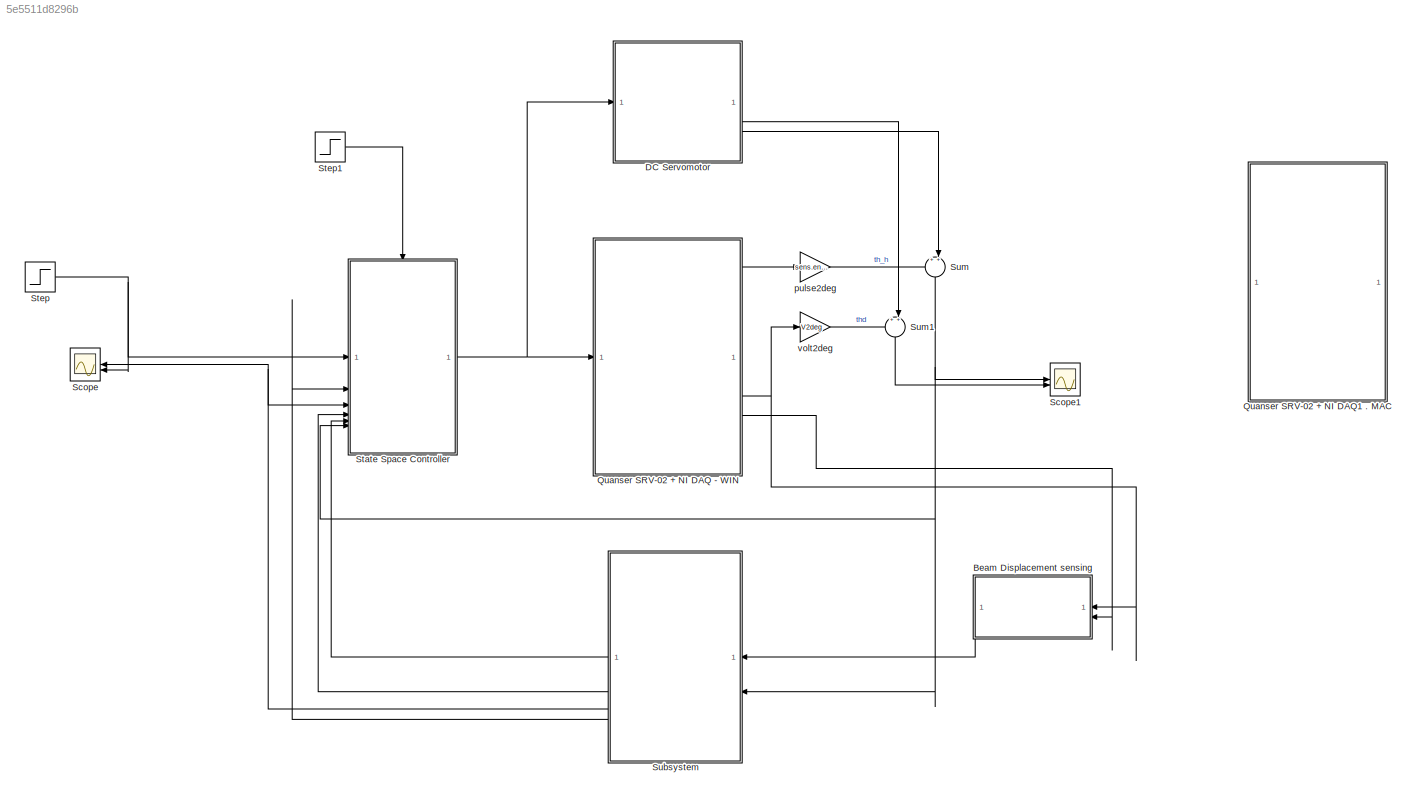
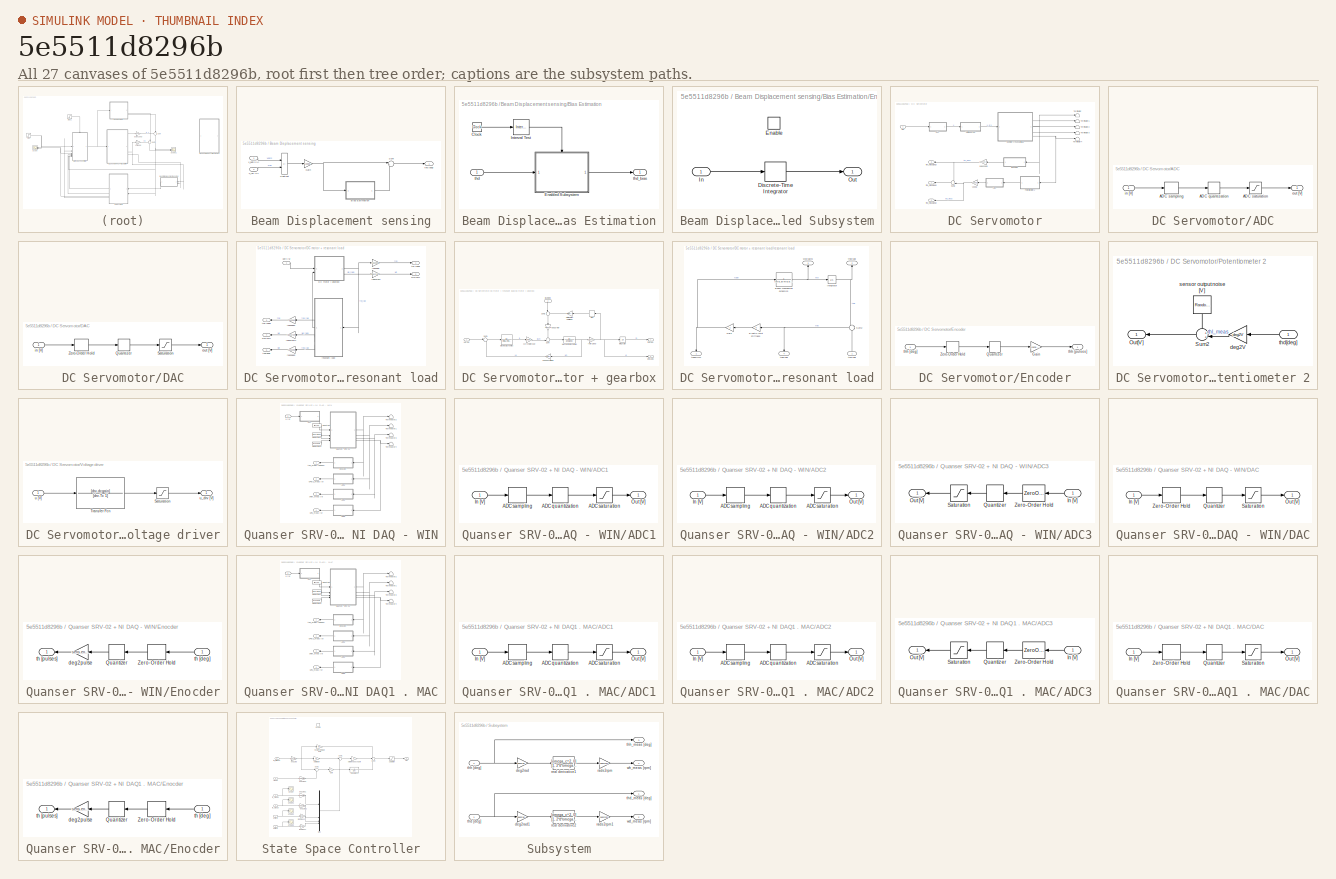
[diagram: thumbnail index - all 27 canvases of the model, root first then tree order]
MODEL slx_5e5511d8296b
KIND model
CONFIG AbsTol = auto
CONFIG EnableMultiTasking = off
CONFIG FixedStep = auto
CONFIG MaxStep = auto
CONFIG MinStep = auto
CONFIG RelTol = 1e-3
CONFIG SampleTimeConstraint = Unconstrained
CONFIG SolverName = ode45
CONFIG StartTime = 0.0
CONFIG StopTime = 5
BLOCK [SubSystem] Beam Displacement sensing
  NameLocation = top
BLOCK [SubSystem] Beam Displacement sensing/Bias Estimation
BLOCK [Clock] Beam Displacement sensing/Bias Estimation/Clock
BLOCK [SubSystem] Beam Displacement sensing/Bias Estimation/Enabled Subsystem
  TreatAsAtomicUnit = on
BLOCK [DiscreteIntegrator] Beam Displacement sensing/Bias Estimation/Enabled Subsystem/Discrete-Time Integrator
  ICPrevOutput = DiscIntNeverNeededParam
  ICPrevScaledInput = DiscIntNeverNeededParam
  InitialConditionSetting = Auto
  SampleTime = -1
  gainval = 1/0.5
BLOCK [EnablePort] Beam Displacement sensing/Bias Estimation/Enabled Subsystem/Enable
BLOCK [Inport] Beam Displacement sensing/Bias Estimation/Enabled Subsystem/In
BLOCK [Outport] Beam Displacement sensing/Bias Estimation/Enabled Subsystem/Out
BLOCK [Reference] Beam Displacement sensing/Bias Estimation/Interval Test  REF=hdlsllib/Logic and Bit
Operations/Interval Test
  SourceBlock = hdlsllib/Logic and Bit\nOperations/Interval Test
  SourceType = Interval Test
BLOCK [Inport] Beam Displacement sensing/Bias Estimation/thd
BLOCK [Outport] Beam Displacement sensing/Bias Estimation/thd_bias
BLOCK [Gain] Beam Displacement sensing/Gain
  Gain = V2deg
BLOCK [Sum] Beam Displacement sensing/Subtract
  IconShape = rectangular
  Inputs = +-
BLOCK [Sum] Beam Displacement sensing/Sum
  Inputs = |+-
BLOCK [Outport] Beam Displacement sensing/thd [deg]
BLOCK [Inport] Beam Displacement sensing/v_pot2 [V]
BLOCK [Inport] Beam Displacement sensing/v_ref [V]
  Port = 2
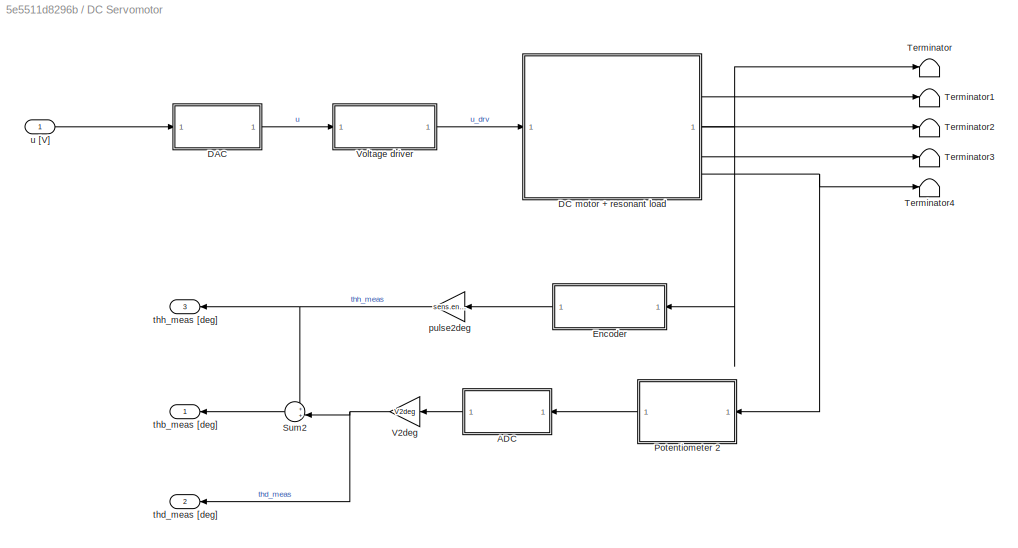
BLOCK [SubSystem] DC Servomotor
  Commented = on
BLOCK [SubSystem] DC Servomotor/ADC
  NameLocation = top
BLOCK [Quantizer] DC Servomotor/ADC/ADC quantization
  QuantizationInterval = daq.adc.q
BLOCK [ZeroOrderHold] DC Servomotor/ADC/ADC sampling
  SampleTime = 0.001
BLOCK [Saturate] DC Servomotor/ADC/ADC saturation
  LowerLimit = -10
  UpperLimit = 10
BLOCK [Inport] DC Servomotor/ADC/in [V]
BLOCK [Outport] DC Servomotor/ADC/out [V]
BLOCK [SubSystem] DC Servomotor/DAC
BLOCK [Quantizer] DC Servomotor/DAC/Quantizer
  QuantizationInterval = daq.dac.q
BLOCK [Saturate] DC Servomotor/DAC/Saturation
  LowerLimit = -10
  UpperLimit = 10
BLOCK [ZeroOrderHold] DC Servomotor/DAC/Zero-Order Hold
  SampleTime = 0.001
BLOCK [Inport] DC Servomotor/DAC/in [V]
BLOCK [Outport] DC Servomotor/DAC/out [V]
BLOCK [SubSystem] DC Servomotor/DC motor + resonant load
BLOCK [SubSystem] DC Servomotor/DC motor + resonant load/DC motor + gearbox
BLOCK [TransferFcn] DC Servomotor/DC motor + resonant load/DC motor + gearbox/Electrical Dynamics
  Denominator = [mot.L, (mot.R+sens.curr.Rs)]
BLOCK [Integrator] DC Servomotor/DC motor + resonant load/DC motor + gearbox/Integrator
BLOCK [TransferFcn] DC Servomotor/DC motor + resonant load/DC motor + gearbox/Mechanical Dynamics
  Denominator = [Jeq, Beq]
BLOCK [Signum] DC Servomotor/DC motor + resonant load/DC motor + gearbox/Sign
  ZeroCross = off
BLOCK [Sum] DC Servomotor/DC motor + resonant load/DC motor + gearbox/Sum
  Inputs = -+|
  NameLocation = top
BLOCK [Sum] DC Servomotor/DC motor + resonant load/DC motor + gearbox/Sum1
  Inputs = |+-
  NameLocation = top
BLOCK [Sum] DC Servomotor/DC motor + resonant load/DC motor + gearbox/Sum2
  Inputs = |++
  NameLocation = right
BLOCK [Gain] DC Servomotor/DC motor + resonant load/DC motor + gearbox/current2torque
  Gain = mot.Kt
BLOCK [Gain] DC Servomotor/DC motor + resonant load/DC motor + gearbox/load2rotor
  Gain = 1/gbox.N
  NameLocation = left
BLOCK [Gain] DC Servomotor/DC motor + resonant load/DC motor + gearbox/rotor2load
  Gain = 1/gbox.N
BLOCK [Gain] DC Servomotor/DC motor + resonant load/DC motor + gearbox/speed2voltage
  Gain = mot.Ke
BLOCK [Gain] DC Servomotor/DC motor + resonant load/DC motor + gearbox/static friction amplitude
  Gain = mld.tausf
BLOCK [Inport] DC Servomotor/DC motor + resonant load/DC motor + gearbox/taue[Nm]
  NameLocation = left
  Port = 2
BLOCK [Outport] DC Servomotor/DC motor + resonant load/DC motor + gearbox/thh [rad]
BLOCK [Inport] DC Servomotor/DC motor + resonant load/DC motor + gearbox/udrv [V]
BLOCK [Outport] DC Servomotor/DC motor + resonant load/DC motor + gearbox/wh[rad//s]
  Port = 2
BLOCK [Gain] DC Servomotor/DC motor + resonant load/rad2deg
  Gain = rad2deg
BLOCK [Gain] DC Servomotor/DC motor + resonant load/rad2deg1
  Gain = rad2deg
  NameLocation = top
BLOCK [Gain] DC Servomotor/DC motor + resonant load/rad2deg2
  Gain = rad2deg
  NameLocation = top
BLOCK [Gain] DC Servomotor/DC motor + resonant load/rads2rpm
  Gain = rads2rpm
BLOCK [Gain] DC Servomotor/DC motor + resonant load/rads2rpm1
  Gain = rads2rpm
  NameLocation = top
BLOCK [SubSystem] DC Servomotor/DC motor + resonant load/resonant load
  NameLocation = top
BLOCK [TransferFcn] DC Servomotor/DC motor + resonant load/resonant load/Beam mechanical dynamics
  Denominator = [mld.Jb mld.Bb]
  Numerator = 1
BLOCK [Gain] DC Servomotor/DC motor + resonant load/resonant load/Elastic joint stiffness
  Gain = 0
  NameLocation = top
BLOCK [Gain] DC Servomotor/DC motor + resonant load/resonant load/Gain
  Gain = -1
  NameLocation = top
BLOCK [Integrator] DC Servomotor/DC motor + resonant load/resonant load/Integrator
BLOCK [Sum] DC Servomotor/DC motor + resonant load/resonant load/Sum2
  Inputs = +-
BLOCK [Outport] DC Servomotor/DC motor + resonant load/resonant load/taue[Nm]
  NameLocation = left
BLOCK [Outport] DC Servomotor/DC motor + resonant load/resonant load/thb[rad]
  NameLocation = right
  Port = 2
BLOCK [Outport] DC Servomotor/DC motor + resonant load/resonant load/thd[rad]
  NameLocation = left
  Port = 4
BLOCK [Inport] DC Servomotor/DC motor + resonant load/resonant load/thh[rad]
  NameLocation = right
BLOCK [Outport] DC Servomotor/DC motor + resonant load/resonant load/wb[rad//s]
  NameLocation = right
  Port = 3
BLOCK [Outport] DC Servomotor/DC motor + resonant load/thb [deg]
  NameLocation = top
  Port = 3
BLOCK [Outport] DC Servomotor/DC motor + resonant load/thd[deg]
  NameLocation = top
  Port = 5
BLOCK [Outport] DC Servomotor/DC motor + resonant load/thh [deg]
BLOCK [Inport] DC Servomotor/DC motor + resonant load/udrv [V]
BLOCK [Outport] DC Servomotor/DC motor + resonant load/wb[rpm]
  NameLocation = top
  Port = 4
BLOCK [Outport] DC Servomotor/DC motor + resonant load/wh[rpm]
  Port = 2
BLOCK [SubSystem] DC Servomotor/Encoder
BLOCK [Gain] DC Servomotor/Encoder/Gain
  Gain = 1/sens.enc.pulse2deg
BLOCK [Quantizer] DC Servomotor/Encoder/Quantizer
  QuantizationInterval = sens.enc.pulse2deg
BLOCK [ZeroOrderHold] DC Servomotor/Encoder/Zero-Order Hold
  SampleTime = 0.001
BLOCK [Inport] DC Servomotor/Encoder/thh [deg]
BLOCK [Outport] DC Servomotor/Encoder/thh [pulses]
BLOCK [SubSystem] DC Servomotor/Potentiometer 2
  NameLocation = top
BLOCK [Outport] DC Servomotor/Potentiometer 2/Out[V]
  NameLocation = top
BLOCK [Sum] DC Servomotor/Potentiometer 2/Sum2
  Inputs = ++|
BLOCK [Gain] DC Servomotor/Potentiometer 2/deg2V
  Gain = deg2V
BLOCK [RandomNumber] DC Servomotor/Potentiometer 2/sensor output noise [V]
  NameLocation = left
  SampleTime = 0.001
  Variance = 3.5*10^[-7]
BLOCK [Inport] DC Servomotor/Potentiometer 2/thd[deg]
  NameLocation = top
BLOCK [Sum] DC Servomotor/Sum2
  Inputs = ++|
BLOCK [Terminator] DC Servomotor/Terminator
BLOCK [Terminator] DC Servomotor/Terminator1
BLOCK [Terminator] DC Servomotor/Terminator2
BLOCK [Terminator] DC Servomotor/Terminator3
BLOCK [Terminator] DC Servomotor/Terminator4
BLOCK [Gain] DC Servomotor/V2deg
  Gain = V2deg
BLOCK [SubSystem] DC Servomotor/Voltage driver
BLOCK [Saturate] DC Servomotor/Voltage driver/Saturation
  LowerLimit = -12
  UpperLimit = 12
BLOCK [TransferFcn] DC Servomotor/Voltage driver/Transfer Fcn
  Denominator = [drv.Tc 1]
  Numerator = [drv.dcgain]
BLOCK [Inport] DC Servomotor/Voltage driver/u [V]
BLOCK [Outport] DC Servomotor/Voltage driver/u_drv [V]
BLOCK [Gain] DC Servomotor/pulse2deg
  Gain = sens.enc.pulse2deg
BLOCK [Outport] DC Servomotor/thb_meas [deg]
  NameLocation = top
BLOCK [Outport] DC Servomotor/thd_meas [deg]
  NameLocation = top
  Port = 2
BLOCK [Outport] DC Servomotor/thh_meas [deg]
  NameLocation = top
  Port = 3
BLOCK [Inport] DC Servomotor/u [V]
BLOCK [SubSystem] Quanser SRV-02 + NI DAQ - WIN
BLOCK [SubSystem] Quanser SRV-02 + NI DAQ - WIN/ADC1
BLOCK [Quantizer] Quanser SRV-02 + NI DAQ - WIN/ADC1/ADC quantization
  QuantizationInterval = daq.adc.q
BLOCK [ZeroOrderHold] Quanser SRV-02 + NI DAQ - WIN/ADC1/ADC sampling
  SampleTime = Ts
BLOCK [Saturate] Quanser SRV-02 + NI DAQ - WIN/ADC1/ADC saturation
  LowerLimit = -daq.adc.fs
  UpperLimit = daq.adc.fs
BLOCK [Inport] Quanser SRV-02 + NI DAQ - WIN/ADC1/In [V]
BLOCK [Outport] Quanser SRV-02 + NI DAQ - WIN/ADC1/Out [V]
BLOCK [SubSystem] Quanser SRV-02 + NI DAQ - WIN/ADC2
BLOCK [Quantizer] Quanser SRV-02 + NI DAQ - WIN/ADC2/ADC quantization
  QuantizationInterval = daq.adc.q
BLOCK [ZeroOrderHold] Quanser SRV-02 + NI DAQ - WIN/ADC2/ADC sampling
  SampleTime = Ts
BLOCK [Saturate] Quanser SRV-02 + NI DAQ - WIN/ADC2/ADC saturation
  LowerLimit = -daq.adc.fs
  UpperLimit = daq.adc.fs
BLOCK [Inport] Quanser SRV-02 + NI DAQ - WIN/ADC2/In [V]
BLOCK [Outport] Quanser SRV-02 + NI DAQ - WIN/ADC2/Out [V]
BLOCK [SubSystem] Quanser SRV-02 + NI DAQ - WIN/ADC3
BLOCK [Inport] Quanser SRV-02 + NI DAQ - WIN/ADC3/In [V]
BLOCK [Outport] Quanser SRV-02 + NI DAQ - WIN/ADC3/Out [V]
BLOCK [Quantizer] Quanser SRV-02 + NI DAQ - WIN/ADC3/Quantizer
  QuantizationInterval = daq.adc.q
BLOCK [Saturate] Quanser SRV-02 + NI DAQ - WIN/ADC3/Saturation
  LowerLimit = -daq.adc.fs
  UpperLimit = daq.adc.fs
BLOCK [ZeroOrderHold] Quanser SRV-02 + NI DAQ - WIN/ADC3/Zero-Order Hold
  SampleTime = Ts
BLOCK [Constant] Quanser SRV-02 + NI DAQ - WIN/Constant
  Value = fricType
BLOCK [Constant] Quanser SRV-02 + NI DAQ - WIN/Constant1
  SampleTime = Inf
  Value = thb0*pi/180
BLOCK [Constant] Quanser SRV-02 + NI DAQ - WIN/Constant2
  SampleTime = Inf
  Value = lockShaft
BLOCK [SubSystem] Quanser SRV-02 + NI DAQ - WIN/DAC
BLOCK [Inport] Quanser SRV-02 + NI DAQ - WIN/DAC/In [V]
BLOCK [Outport] Quanser SRV-02 + NI DAQ - WIN/DAC/Out [V]
BLOCK [Quantizer] Quanser SRV-02 + NI DAQ - WIN/DAC/Quantizer
  QuantizationInterval = daq.dac.q
BLOCK [Saturate] Quanser SRV-02 + NI DAQ - WIN/DAC/Saturation
  LowerLimit = -daq.dac.fs
  UpperLimit = daq.dac.fs
BLOCK [ZeroOrderHold] Quanser SRV-02 + NI DAQ - WIN/DAC/Zero-Order Hold
  SampleTime = Ts
BLOCK [SubSystem] Quanser SRV-02 + NI DAQ - WIN/Enocder
BLOCK [Quantizer] Quanser SRV-02 + NI DAQ - WIN/Enocder/Quantizer
  QuantizationInterval = sens.enc.pulse2deg
BLOCK [ZeroOrderHold] Quanser SRV-02 + NI DAQ - WIN/Enocder/Zero-Order Hold
  SampleTime = Ts
BLOCK [Gain] Quanser SRV-02 + NI DAQ - WIN/Enocder/deg2pulse
  Gain = sens.enc.deg2pulse
BLOCK [Inport] Quanser SRV-02 + NI DAQ - WIN/Enocder/th [deg]
BLOCK [Outport] Quanser SRV-02 + NI DAQ - WIN/Enocder/th [pulses]
BLOCK [ModelReference] Quanser SRV-02 + NI DAQ - WIN/Quanser SRV-02
  CopyOfModelProtected = on
  ModelNameDialog = SRV02RL_win64.slxp
  ModelReferenceVersion = 1.76
BLOCK [Terminator] Quanser SRV-02 + NI DAQ - WIN/Terminator1
BLOCK [Terminator] Quanser SRV-02 + NI DAQ - WIN/Terminator2
BLOCK [Terminator] Quanser SRV-02 + NI DAQ - WIN/Terminator3
BLOCK [Terminator] Quanser SRV-02 + NI DAQ - WIN/Terminator4
BLOCK [Outport] Quanser SRV-02 + NI DAQ - WIN/thh_meas [pulses]
BLOCK [Inport] Quanser SRV-02 + NI DAQ - WIN/u [V]
BLOCK [Outport] Quanser SRV-02 + NI DAQ - WIN/uPot2_meas [V]
  Port = 2
BLOCK [Outport] Quanser SRV-02 + NI DAQ - WIN/uRef_meas [V]
  Port = 3
BLOCK [Outport] Quanser SRV-02 + NI DAQ - WIN/uRs_meas [V]
  Port = 4
BLOCK [SubSystem] Quanser SRV-02 + NI DAQ1 . MAC
  Commented = on
BLOCK [SubSystem] Quanser SRV-02 + NI DAQ1 . MAC/ADC1
BLOCK [Quantizer] Quanser SRV-02 + NI DAQ1 . MAC/ADC1/ADC quantization
  QuantizationInterval = daq.adc.q
BLOCK [ZeroOrderHold] Quanser SRV-02 + NI DAQ1 . MAC/ADC1/ADC sampling
  SampleTime = Ts
BLOCK [Saturate] Quanser SRV-02 + NI DAQ1 . MAC/ADC1/ADC saturation
  LowerLimit = -daq.adc.fs
  UpperLimit = daq.adc.fs
BLOCK [Inport] Quanser SRV-02 + NI DAQ1 . MAC/ADC1/In [V]
BLOCK [Outport] Quanser SRV-02 + NI DAQ1 . MAC/ADC1/Out [V]
BLOCK [SubSystem] Quanser SRV-02 + NI DAQ1 . MAC/ADC2
BLOCK [Quantizer] Quanser SRV-02 + NI DAQ1 . MAC/ADC2/ADC quantization
  QuantizationInterval = daq.adc.q
BLOCK [ZeroOrderHold] Quanser SRV-02 + NI DAQ1 . MAC/ADC2/ADC sampling
  SampleTime = Ts
BLOCK [Saturate] Quanser SRV-02 + NI DAQ1 . MAC/ADC2/ADC saturation
  LowerLimit = -daq.adc.fs
  UpperLimit = daq.adc.fs
BLOCK [Inport] Quanser SRV-02 + NI DAQ1 . MAC/ADC2/In [V]
BLOCK [Outport] Quanser SRV-02 + NI DAQ1 . MAC/ADC2/Out [V]
BLOCK [SubSystem] Quanser SRV-02 + NI DAQ1 . MAC/ADC3
BLOCK [Inport] Quanser SRV-02 + NI DAQ1 . MAC/ADC3/In [V]
BLOCK [Outport] Quanser SRV-02 + NI DAQ1 . MAC/ADC3/Out [V]
BLOCK [Quantizer] Quanser SRV-02 + NI DAQ1 . MAC/ADC3/Quantizer
  QuantizationInterval = daq.adc.q
BLOCK [Saturate] Quanser SRV-02 + NI DAQ1 . MAC/ADC3/Saturation
  LowerLimit = -daq.adc.fs
  UpperLimit = daq.adc.fs
BLOCK [ZeroOrderHold] Quanser SRV-02 + NI DAQ1 . MAC/ADC3/Zero-Order Hold
  SampleTime = Ts
BLOCK [Constant] Quanser SRV-02 + NI DAQ1 . MAC/Constant
  Value = fricType
BLOCK [Constant] Quanser SRV-02 + NI DAQ1 . MAC/Constant1
  SampleTime = Inf
  Value = thb0*pi/180
BLOCK [Constant] Quanser SRV-02 + NI DAQ1 . MAC/Constant2
  SampleTime = Inf
  Value = lockShaft
BLOCK [SubSystem] Quanser SRV-02 + NI DAQ1 . MAC/DAC
BLOCK [Inport] Quanser SRV-02 + NI DAQ1 . MAC/DAC/In [V]
BLOCK [Outport] Quanser SRV-02 + NI DAQ1 . MAC/DAC/Out [V]
BLOCK [Quantizer] Quanser SRV-02 + NI DAQ1 . MAC/DAC/Quantizer
  QuantizationInterval = daq.dac.q
BLOCK [Saturate] Quanser SRV-02 + NI DAQ1 . MAC/DAC/Saturation
  LowerLimit = -daq.dac.fs
  UpperLimit = daq.dac.fs
BLOCK [ZeroOrderHold] Quanser SRV-02 + NI DAQ1 . MAC/DAC/Zero-Order Hold
  SampleTime = Ts
BLOCK [SubSystem] Quanser SRV-02 + NI DAQ1 . MAC/Enocder
BLOCK [Quantizer] Quanser SRV-02 + NI DAQ1 . MAC/Enocder/Quantizer
  QuantizationInterval = sens.enc.pulse2deg
BLOCK [ZeroOrderHold] Quanser SRV-02 + NI DAQ1 . MAC/Enocder/Zero-Order Hold
  SampleTime = Ts
BLOCK [Gain] Quanser SRV-02 + NI DAQ1 . MAC/Enocder/deg2pulse
  Gain = sens.enc.deg2pulse
BLOCK [Inport] Quanser SRV-02 + NI DAQ1 . MAC/Enocder/th [deg]
BLOCK [Outport] Quanser SRV-02 + NI DAQ1 . MAC/Enocder/th [pulses]
BLOCK [ModelReference] Quanser SRV-02 + NI DAQ1 . MAC/Quanser SRV-02
  CopyOfModelProtected = on
  ModelNameDialog = SRV02RL_maci64.slxp
  ModelReferenceVersion = 1.76
BLOCK [Terminator] Quanser SRV-02 + NI DAQ1 . MAC/Terminator1
BLOCK [Terminator] Quanser SRV-02 + NI DAQ1 . MAC/Terminator2
BLOCK [Terminator] Quanser SRV-02 + NI DAQ1 . MAC/Terminator3
BLOCK [Terminator] Quanser SRV-02 + NI DAQ1 . MAC/Terminator4
BLOCK [Outport] Quanser SRV-02 + NI DAQ1 . MAC/thh_meas [pulses]
BLOCK [Inport] Quanser SRV-02 + NI DAQ1 . MAC/u [V]
BLOCK [Outport] Quanser SRV-02 + NI DAQ1 . MAC/uPot2_meas [V]
  Port = 2
BLOCK [Outport] Quanser SRV-02 + NI DAQ1 . MAC/uRef_meas [V]
  Port = 3
BLOCK [Outport] Quanser SRV-02 + NI DAQ1 . MAC/uRs_meas [V]
  Port = 4
BLOCK [Scope] Scope
  Floating = off
  NameLocation = top
  NumInputPorts = 2
  ScopeSpecificationString = Simulink.scopes.TimeScopeBlockCfg('CurrentConfiguration', extmgr.ConfigurationSet(extmgr.Configuration('Core','General UI',true),extmgr.Configuration('Core','Source UI',true),extmgr.Configuration('Sources','WiredSimulink',true),extmgr.Configuration('Visuals','Time Domain',true,'SerializedDisplays',{struct('MinYLimReal','-6.615','MaxYLimReal','59.535','YLabelReal','','MinYLimMag','0.00000','MaxYLim...<+1403ch>
BLOCK [Scope] Scope1
  Floating = off
  NumInputPorts = 2
  ScopeSpecificationString = Simulink.scopes.TimeScopeBlockCfg('CurrentConfiguration', extmgr.ConfigurationSet(extmgr.Configuration('Core','General UI',true),extmgr.Configuration('Core','Source UI',true),extmgr.Configuration('Sources','WiredSimulink',true,'DataLoggingVariableName','ScopeData1'),extmgr.Configuration('Visuals','Time Domain',true,'SerializedDisplays',{struct('MinYLimReal','-30.81093','MaxYLimReal','203.49838','Y...<+1406ch>
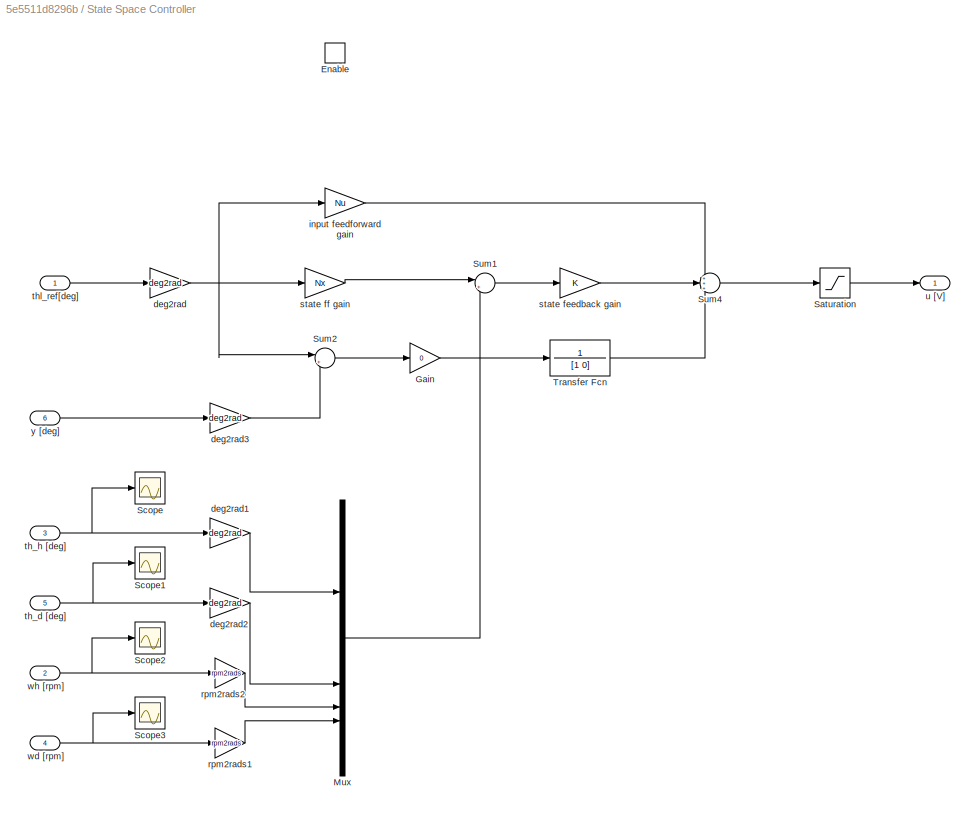
BLOCK [SubSystem] State Space Controller
BLOCK [Saturate] State Space Controller/ Saturation
  LowerLimit = -12
  UpperLimit = 12
BLOCK [EnablePort] State Space Controller/Enable
BLOCK [Gain] State Space Controller/Gain
  Gain = 0
BLOCK [Mux] State Space Controller/Mux
  DisplayOption = bar
BLOCK [Scope] State Space Controller/Scope
  Floating = off
  NumInputPorts = 1
  ScopeSpecificationString = Simulink.scopes.TimeScopeBlockCfg('CurrentConfiguration', extmgr.ConfigurationSet(extmgr.Configuration('Core','General UI',true),extmgr.Configuration('Core','Source UI',true),extmgr.Configuration('Sources','WiredSimulink',true,'DataLoggingVariableName','ScopeData1'),extmgr.Configuration('Visuals','Time Domain',true,'SerializedDisplays',{struct('MinYLimReal','-14.2875','MaxYLimReal','54.7875','YLab...<+1369ch>
BLOCK [Scope] State Space Controller/Scope1
  Floating = off
  NumInputPorts = 1
  ScopeSpecificationString = Simulink.scopes.TimeScopeBlockCfg('CurrentConfiguration', extmgr.ConfigurationSet(extmgr.Configuration('Core','General UI',true),extmgr.Configuration('Core','Source UI',true),extmgr.Configuration('Sources','WiredSimulink',true,'DataLoggingVariableName','ScopeData2'),extmgr.Configuration('Visuals','Time Domain',true,'SerializedDisplays',{struct('MinYLimReal','-8.18988','MaxYLimReal','10.2537','YLab...<+1402ch>
BLOCK [Scope] State Space Controller/Scope2
  Floating = off
  NumInputPorts = 1
  ScopeSpecificationString = Simulink.scopes.TimeScopeBlockCfg('CurrentConfiguration', extmgr.ConfigurationSet(extmgr.Configuration('Core','General UI',true),extmgr.Configuration('Core','Source UI',true),extmgr.Configuration('Sources','WiredSimulink',true,'DataLoggingVariableName','ScopeData3'),extmgr.Configuration('Visuals','Time Domain',true,'SerializedDisplays',{struct('MinYLimReal','-14.15145','MaxYLimReal','51.48698','YL...<+1373ch>
BLOCK [Scope] State Space Controller/Scope3
  Floating = off
  NumInputPorts = 1
  ScopeSpecificationString = Simulink.scopes.TimeScopeBlockCfg('CurrentConfiguration', extmgr.ConfigurationSet(extmgr.Configuration('Core','General UI',true),extmgr.Configuration('Core','Source UI',true),extmgr.Configuration('Sources','WiredSimulink',true,'DataLoggingVariableName','ScopeData4'),extmgr.Configuration('Visuals','Time Domain',true,'SerializedDisplays',{struct('MinYLimReal','-717.88162','MaxYLimReal','4674.65594',...<+1404ch>
BLOCK [Sum] State Space Controller/Sum1
  Inputs = |+-
  NameLocation = top
BLOCK [Sum] State Space Controller/Sum2
  Inputs = |+-
  NameLocation = top
BLOCK [Sum] State Space Controller/Sum4
  Inputs = +++
  NameLocation = top
BLOCK [TransferFcn] State Space Controller/Transfer Fcn
  Denominator = [1 0]
  Numerator = 1
BLOCK [Gain] State Space Controller/deg2rad
  Gain = deg2rad
BLOCK [Gain] State Space Controller/deg2rad1
  Gain = deg2rad
BLOCK [Gain] State Space Controller/deg2rad2
  Gain = deg2rad
BLOCK [Gain] State Space Controller/deg2rad3
  Gain = deg2rad
BLOCK [Gain] State Space Controller/input feedforward gain
  Gain = Nu
BLOCK [Gain] State Space Controller/rpm2rads1
  Gain = rpm2rads
BLOCK [Gain] State Space Controller/rpm2rads2
  Gain = rpm2rads
BLOCK [Gain] State Space Controller/state feedback gain
  Gain = K
  Multiplication = Matrix(K*u) (u vector)
BLOCK [Gain] State Space Controller/state ff gain
  Gain = Nx
  Multiplication = Matrix(K*u) (u vector)
BLOCK [Inport] State Space Controller/th_d [deg]
  Port = 5
BLOCK [Inport] State Space Controller/th_h [deg]
  Port = 3
BLOCK [Inport] State Space Controller/thl_ref[deg]
BLOCK [Outport] State Space Controller/u [V]
BLOCK [Inport] State Space Controller/wd [rpm]
  Port = 4
BLOCK [Inport] State Space Controller/wh [rpm]
  Port = 2
BLOCK [Inport] State Space Controller/y [deg]
  Port = 6
BLOCK [Step] Step
  After = 50
BLOCK [Step] Step1
  After = 50
BLOCK [SubSystem] Subsystem
  NameLocation = top
BLOCK [Gain] Subsystem/deg2rad
  Gain = deg2rad
BLOCK [Gain] Subsystem/deg2rad1
  Gain = deg2rad
BLOCK [Gain] Subsystem/rads2rpm
  Gain = rads2rpm
BLOCK [Gain] Subsystem/rads2rpm1
  Gain = rads2rpm
BLOCK [TransferFcn] Subsystem/real derivative1
  Denominator = [1, 2*d*omega_c, omega_c^2]
  Numerator = [omega_c^2, 0]
BLOCK [TransferFcn] Subsystem/real derivative2
  Denominator = [1, 2*d*omega_c, omega_c^2]
  Numerator = [omega_c^2, 0]
BLOCK [Inport] Subsystem/thd [deg]
BLOCK [Outport] Subsystem/thd_meas [deg]
BLOCK [Inport] Subsystem/thh [deg]
  Port = 2
BLOCK [Outport] Subsystem/thh_meas [deg]
  Port = 3
BLOCK [Outport] Subsystem/wd_meas [rpm]
  Port = 2
BLOCK [Outport] Subsystem/wh_meas [rpm]
  Port = 4
BLOCK [Sum] Sum
  Inputs = ++|
  NameLocation = left
BLOCK [Sum] Sum1
  Inputs = ++|
  NameLocation = left
BLOCK [Gain] pulse2deg
  Gain = sens.enc.pulse2deg
BLOCK [Gain] volt2deg
  Gain = V2deg
LINE Beam Displacement sensing/Bias Estimation/Clock:1 -> Beam Displacement sensing/Bias Estimation/Interval Test:1
LINE Beam Displacement sensing/Bias Estimation/Enabled Subsystem/Discrete-Time Integrator:1 -> Beam Displacement sensing/Bias Estimation/Enabled Subsystem/Out:1
LINE Beam Displacement sensing/Bias Estimation/Enabled Subsystem/In:1 -> Beam Displacement sensing/Bias Estimation/Enabled Subsystem/Discrete-Time Integrator:1
LINE Beam Displacement sensing/Bias Estimation/Enabled Subsystem:1 -> Beam Displacement sensing/Bias Estimation/thd_bias:1
LINE Beam Displacement sensing/Bias Estimation/Interval Test:1 -> Beam Displacement sensing/Bias Estimation/Enabled Subsystem:enable
LINE Beam Displacement sensing/Bias Estimation/thd:1 -> Beam Displacement sensing/Bias Estimation/Enabled Subsystem:1
LINE Beam Displacement sensing/Bias Estimation:1 -> Beam Displacement sensing/Sum:2
NET Beam Displacement sensing/Gain:1 -> Beam Displacement sensing/Bias Estimation:1, Beam Displacement sensing/Sum:1
LINE Beam Displacement sensing/Subtract:1 -> Beam Displacement sensing/Gain:1
LINE Beam Displacement sensing/Sum:1 -> Beam Displacement sensing/thd [deg]:1
LINE Beam Displacement sensing/v_pot2 [V]:1 -> Beam Displacement sensing/Subtract:1
LINE Beam Displacement sensing/v_ref [V]:1 -> Beam Displacement sensing/Subtract:2
LINE Beam Displacement sensing:1 -> Subsystem:1
LINE DC Servomotor/ADC/ADC quantization:1 -> DC Servomotor/ADC/ADC saturation:1
LINE DC Servomotor/ADC/ADC sampling:1 -> DC Servomotor/ADC/ADC quantization:1
LINE DC Servomotor/ADC/ADC saturation:1 -> DC Servomotor/ADC/out [V]:1
LINE DC Servomotor/ADC/in [V]:1 -> DC Servomotor/ADC/ADC sampling:1
LINE DC Servomotor/ADC:1 -> DC Servomotor/V2deg:1
LINE DC Servomotor/DAC/Quantizer:1 -> DC Servomotor/DAC/Saturation:1
LINE DC Servomotor/DAC/Saturation:1 -> DC Servomotor/DAC/out [V]:1
LINE DC Servomotor/DAC/Zero-Order Hold:1 -> DC Servomotor/DAC/Quantizer:1
LINE DC Servomotor/DAC/in [V]:1 -> DC Servomotor/DAC/Zero-Order Hold:1
LINE DC Servomotor/DAC:1 -> DC Servomotor/Voltage driver:1
LINE DC Servomotor/DC motor + resonant load/DC motor + gearbox/Electrical Dynamics:1 -> DC Servomotor/DC motor + resonant load/DC motor + gearbox/current2torque:1
LINE DC Servomotor/DC motor + resonant load/DC motor + gearbox/Integrator:1 -> DC Servomotor/DC motor + resonant load/DC motor + gearbox/thh [rad]:1
NET DC Servomotor/DC motor + resonant load/DC motor + gearbox/Mechanical Dynamics:1 -> DC Servomotor/DC motor + resonant load/DC motor + gearbox/rotor2load:1, DC Servomotor/DC motor + resonant load/DC motor + gearbox/speed2voltage:1
LINE DC Servomotor/DC motor + resonant load/DC motor + gearbox/Sign:1 -> DC Servomotor/DC motor + resonant load/DC motor + gearbox/static friction amplitude:1
LINE DC Servomotor/DC motor + resonant load/DC motor + gearbox/Sum1:1 -> DC Servomotor/DC motor + resonant load/DC motor + gearbox/Electrical Dynamics:1
LINE DC Servomotor/DC motor + resonant load/DC motor + gearbox/Sum2:1 -> DC Servomotor/DC motor + resonant load/DC motor + gearbox/load2rotor:1
LINE DC Servomotor/DC motor + resonant load/DC motor + gearbox/Sum:1 -> DC Servomotor/DC motor + resonant load/DC motor + gearbox/Mechanical Dynamics:1
LINE DC Servomotor/DC motor + resonant load/DC motor + gearbox/current2torque:1 -> DC Servomotor/DC motor + resonant load/DC motor + gearbox/Sum:2
LINE DC Servomotor/DC motor + resonant load/DC motor + gearbox/load2rotor:1 -> DC Servomotor/DC motor + resonant load/DC motor + gearbox/Sum:1
NET DC Servomotor/DC motor + resonant load/DC motor + gearbox/rotor2load:1 -> DC Servomotor/DC motor + resonant load/DC motor + gearbox/Integrator:1, DC Servomotor/DC motor + resonant load/DC motor + gearbox/Sign:1, DC Servomotor/DC motor + resonant load/DC motor + gearbox/wh[rad//s]:1
LINE DC Servomotor/DC motor + resonant load/DC motor + gearbox/speed2voltage:1 -> DC Servomotor/DC motor + resonant load/DC motor + gearbox/Sum1:2
LINE DC Servomotor/DC motor + resonant load/DC motor + gearbox/static friction amplitude:1 -> DC Servomotor/DC motor + resonant load/DC motor + gearbox/Sum2:2
LINE DC Servomotor/DC motor + resonant load/DC motor + gearbox/taue[Nm]:1 -> DC Servomotor/DC motor + resonant load/DC motor + gearbox/Sum2:1
LINE DC Servomotor/DC motor + resonant load/DC motor + gearbox/udrv [V]:1 -> DC Servomotor/DC motor + resonant load/DC motor + gearbox/Sum1:1
NET DC Servomotor/DC motor + resonant load/DC motor + gearbox:1 -> DC Servomotor/DC motor + resonant load/rad2deg:1, DC Servomotor/DC motor + resonant load/resonant load:1
LINE DC Servomotor/DC motor + resonant load/DC motor + gearbox:2 -> DC Servomotor/DC motor + resonant load/rads2rpm:1
LINE DC Servomotor/DC motor + resonant load/rad2deg1:1 -> DC Servomotor/DC motor + resonant load/thb [deg]:1
LINE DC Servomotor/DC motor + resonant load/rad2deg2:1 -> DC Servomotor/DC motor + resonant load/thd[deg]:1
LINE DC Servomotor/DC motor + resonant load/rad2deg:1 -> DC Servomotor/DC motor + resonant load/thh [deg]:1
LINE DC Servomotor/DC motor + resonant load/rads2rpm1:1 -> DC Servomotor/DC motor + resonant load/wb[rpm]:1
LINE DC Servomotor/DC motor + resonant load/rads2rpm:1 -> DC Servomotor/DC motor + resonant load/wh[rpm]:1
NET DC Servomotor/DC motor + resonant load/resonant load/Beam mechanical dynamics:1 -> DC Servomotor/DC motor + resonant load/resonant load/Integrator:1, DC Servomotor/DC motor + resonant load/resonant load/wb[rad//s]:1
LINE DC Servomotor/DC motor + resonant load/resonant load/Elastic joint stiffness:1 -> DC Servomotor/DC motor + resonant load/resonant load/Gain:1
NET DC Servomotor/DC motor + resonant load/resonant load/Gain:1 -> DC Servomotor/DC motor + resonant load/resonant load/Beam mechanical dynamics:1, DC Servomotor/DC motor + resonant load/resonant load/taue[Nm]:1
NET DC Servomotor/DC motor + resonant load/resonant load/Integrator:1 -> DC Servomotor/DC motor + resonant load/resonant load/Sum2:1, DC Servomotor/DC motor + resonant load/resonant load/thb[rad]:1
NET DC Servomotor/DC motor + resonant load/resonant load/Sum2:1 -> DC Servomotor/DC motor + resonant load/resonant load/Elastic joint stiffness:1, DC Servomotor/DC motor + resonant load/resonant load/thd[rad]:1
LINE DC Servomotor/DC motor + resonant load/resonant load/thh[rad]:1 -> DC Servomotor/DC motor + resonant load/resonant load/Sum2:2
LINE DC Servomotor/DC motor + resonant load/resonant load:1 -> DC Servomotor/DC motor + resonant load/DC motor + gearbox:2
LINE DC Servomotor/DC motor + resonant load/resonant load:2 -> DC Servomotor/DC motor + resonant load/rad2deg1:1
LINE DC Servomotor/DC motor + resonant load/resonant load:3 -> DC Servomotor/DC motor + resonant load/rads2rpm1:1
LINE DC Servomotor/DC motor + resonant load/resonant load:4 -> DC Servomotor/DC motor + resonant load/rad2deg2:1
LINE DC Servomotor/DC motor + resonant load/udrv [V]:1 -> DC Servomotor/DC motor + resonant load/DC motor + gearbox:1
NET DC Servomotor/DC motor + resonant load:1 -> DC Servomotor/Encoder:1, DC Servomotor/Terminator:1
LINE DC Servomotor/DC motor + resonant load:2 -> DC Servomotor/Terminator1:1
LINE DC Servomotor/DC motor + resonant load:3 -> DC Servomotor/Terminator2:1
LINE DC Servomotor/DC motor + resonant load:4 -> DC Servomotor/Terminator3:1
NET DC Servomotor/DC motor + resonant load:5 -> DC Servomotor/Potentiometer 2:1, DC Servomotor/Terminator4:1
LINE DC Servomotor/Encoder/Gain:1 -> DC Servomotor/Encoder/thh [pulses]:1
LINE DC Servomotor/Encoder/Quantizer:1 -> DC Servomotor/Encoder/Gain:1
LINE DC Servomotor/Encoder/Zero-Order Hold:1 -> DC Servomotor/Encoder/Quantizer:1
LINE DC Servomotor/Encoder/thh [deg]:1 -> DC Servomotor/Encoder/Zero-Order Hold:1
LINE DC Servomotor/Encoder:1 -> DC Servomotor/pulse2deg:1
LINE DC Servomotor/Potentiometer 2/Sum2:1 -> DC Servomotor/Potentiometer 2/Out[V]:1
LINE DC Servomotor/Potentiometer 2/deg2V:1 -> DC Servomotor/Potentiometer 2/Sum2:2
LINE DC Servomotor/Potentiometer 2/sensor output noise [V]:1 -> DC Servomotor/Potentiometer 2/Sum2:1
LINE DC Servomotor/Potentiometer 2/thd[deg]:1 -> DC Servomotor/Potentiometer 2/deg2V:1
LINE DC Servomotor/Potentiometer 2:1 -> DC Servomotor/ADC:1
LINE DC Servomotor/Sum2:1 -> DC Servomotor/thb_meas [deg]:1
NET DC Servomotor/V2deg:1 -> DC Servomotor/Sum2:2, DC Servomotor/thd_meas [deg]:1
LINE DC Servomotor/Voltage driver/Saturation:1 -> DC Servomotor/Voltage driver/u_drv [V]:1
LINE DC Servomotor/Voltage driver/Transfer Fcn:1 -> DC Servomotor/Voltage driver/Saturation:1
LINE DC Servomotor/Voltage driver/u [V]:1 -> DC Servomotor/Voltage driver/Transfer Fcn:1
LINE DC Servomotor/Voltage driver:1 -> DC Servomotor/DC motor + resonant load:1
NET DC Servomotor/pulse2deg:1 -> DC Servomotor/Sum2:1, DC Servomotor/thh_meas [deg]:1
LINE DC Servomotor/u [V]:1 -> DC Servomotor/DAC:1
LINE DC Servomotor:2 -> Sum1:2
LINE DC Servomotor:3 -> Sum:2
LINE Quanser SRV-02 + NI DAQ - WIN/ADC1/ADC quantization:1 -> Quanser SRV-02 + NI DAQ - WIN/ADC1/ADC saturation:1
LINE Quanser SRV-02 + NI DAQ - WIN/ADC1/ADC sampling:1 -> Quanser SRV-02 + NI DAQ - WIN/ADC1/ADC quantization:1
LINE Quanser SRV-02 + NI DAQ - WIN/ADC1/ADC saturation:1 -> Quanser SRV-02 + NI DAQ - WIN/ADC1/Out [V]:1
LINE Quanser SRV-02 + NI DAQ - WIN/ADC1/In [V]:1 -> Quanser SRV-02 + NI DAQ - WIN/ADC1/ADC sampling:1
LINE Quanser SRV-02 + NI DAQ - WIN/ADC1:1 -> Quanser SRV-02 + NI DAQ - WIN/uPot2_meas [V]:1
LINE Quanser SRV-02 + NI DAQ - WIN/ADC2/ADC quantization:1 -> Quanser SRV-02 + NI DAQ - WIN/ADC2/ADC saturation:1
LINE Quanser SRV-02 + NI DAQ - WIN/ADC2/ADC sampling:1 -> Quanser SRV-02 + NI DAQ - WIN/ADC2/ADC quantization:1
LINE Quanser SRV-02 + NI DAQ - WIN/ADC2/ADC saturation:1 -> Quanser SRV-02 + NI DAQ - WIN/ADC2/Out [V]:1
LINE Quanser SRV-02 + NI DAQ - WIN/ADC2/In [V]:1 -> Quanser SRV-02 + NI DAQ - WIN/ADC2/ADC sampling:1
LINE Quanser SRV-02 + NI DAQ - WIN/ADC2:1 -> Quanser SRV-02 + NI DAQ - WIN/uRef_meas [V]:1
LINE Quanser SRV-02 + NI DAQ - WIN/ADC3/In [V]:1 -> Quanser SRV-02 + NI DAQ - WIN/ADC3/Zero-Order Hold:1
LINE Quanser SRV-02 + NI DAQ - WIN/ADC3/Quantizer:1 -> Quanser SRV-02 + NI DAQ - WIN/ADC3/Saturation:1
LINE Quanser SRV-02 + NI DAQ - WIN/ADC3/Saturation:1 -> Quanser SRV-02 + NI DAQ - WIN/ADC3/Out [V]:1
LINE Quanser SRV-02 + NI DAQ - WIN/ADC3/Zero-Order Hold:1 -> Quanser SRV-02 + NI DAQ - WIN/ADC3/Quantizer:1
LINE Quanser SRV-02 + NI DAQ - WIN/ADC3:1 -> Quanser SRV-02 + NI DAQ - WIN/uRs_meas [V]:1
LINE Quanser SRV-02 + NI DAQ - WIN/Constant1:1 -> Quanser SRV-02 + NI DAQ - WIN/Quanser SRV-02:3
LINE Quanser SRV-02 + NI DAQ - WIN/Constant2:1 -> Quanser SRV-02 + NI DAQ - WIN/Quanser SRV-02:4
LINE Quanser SRV-02 + NI DAQ - WIN/Constant:1 -> Quanser SRV-02 + NI DAQ - WIN/Quanser SRV-02:2
LINE Quanser SRV-02 + NI DAQ - WIN/DAC/In [V]:1 -> Quanser SRV-02 + NI DAQ - WIN/DAC/Zero-Order Hold:1
LINE Quanser SRV-02 + NI DAQ - WIN/DAC/Quantizer:1 -> Quanser SRV-02 + NI DAQ - WIN/DAC/Saturation:1
LINE Quanser SRV-02 + NI DAQ - WIN/DAC/Saturation:1 -> Quanser SRV-02 + NI DAQ - WIN/DAC/Out [V]:1
LINE Quanser SRV-02 + NI DAQ - WIN/DAC/Zero-Order Hold:1 -> Quanser SRV-02 + NI DAQ - WIN/DAC/Quantizer:1
LINE Quanser SRV-02 + NI DAQ - WIN/DAC:1 -> Quanser SRV-02 + NI DAQ - WIN/Quanser SRV-02:1
LINE Quanser SRV-02 + NI DAQ - WIN/Enocder/Quantizer:1 -> Quanser SRV-02 + NI DAQ - WIN/Enocder/deg2pulse:1
LINE Quanser SRV-02 + NI DAQ - WIN/Enocder/Zero-Order Hold:1 -> Quanser SRV-02 + NI DAQ - WIN/Enocder/Quantizer:1
LINE Quanser SRV-02 + NI DAQ - WIN/Enocder/deg2pulse:1 -> Quanser SRV-02 + NI DAQ - WIN/Enocder/th [pulses]:1
LINE Quanser SRV-02 + NI DAQ - WIN/Enocder/th [deg]:1 -> Quanser SRV-02 + NI DAQ - WIN/Enocder/Zero-Order Hold:1
LINE Quanser SRV-02 + NI DAQ - WIN/Enocder:1 -> Quanser SRV-02 + NI DAQ - WIN/thh_meas [pulses]:1
NET Quanser SRV-02 + NI DAQ - WIN/Quanser SRV-02:1 -> Quanser SRV-02 + NI DAQ - WIN/Enocder:1, Quanser SRV-02 + NI DAQ - WIN/Terminator2:1
NET Quanser SRV-02 + NI DAQ - WIN/Quanser SRV-02:2 -> Quanser SRV-02 + NI DAQ - WIN/ADC1:1, Quanser SRV-02 + NI DAQ - WIN/Terminator1:1
NET Quanser SRV-02 + NI DAQ - WIN/Quanser SRV-02:3 -> Quanser SRV-02 + NI DAQ - WIN/ADC2:1, Quanser SRV-02 + NI DAQ - WIN/Terminator3:1
NET Quanser SRV-02 + NI DAQ - WIN/Quanser SRV-02:4 -> Quanser SRV-02 + NI DAQ - WIN/ADC3:1, Quanser SRV-02 + NI DAQ - WIN/Terminator4:1
LINE Quanser SRV-02 + NI DAQ - WIN/u [V]:1 -> Quanser SRV-02 + NI DAQ - WIN/DAC:1
LINE Quanser SRV-02 + NI DAQ - WIN:1 -> pulse2deg:1
NET Quanser SRV-02 + NI DAQ - WIN:2 -> Beam Displacement sensing:1, volt2deg:1
LINE Quanser SRV-02 + NI DAQ - WIN:3 -> Beam Displacement sensing:2
LINE Quanser SRV-02 + NI DAQ1 . MAC/ADC1/ADC quantization:1 -> Quanser SRV-02 + NI DAQ1 . MAC/ADC1/ADC saturation:1
LINE Quanser SRV-02 + NI DAQ1 . MAC/ADC1/ADC sampling:1 -> Quanser SRV-02 + NI DAQ1 . MAC/ADC1/ADC quantization:1
LINE Quanser SRV-02 + NI DAQ1 . MAC/ADC1/ADC saturation:1 -> Quanser SRV-02 + NI DAQ1 . MAC/ADC1/Out [V]:1
LINE Quanser SRV-02 + NI DAQ1 . MAC/ADC1/In [V]:1 -> Quanser SRV-02 + NI DAQ1 . MAC/ADC1/ADC sampling:1
LINE Quanser SRV-02 + NI DAQ1 . MAC/ADC1:1 -> Quanser SRV-02 + NI DAQ1 . MAC/uPot2_meas [V]:1
LINE Quanser SRV-02 + NI DAQ1 . MAC/ADC2/ADC quantization:1 -> Quanser SRV-02 + NI DAQ1 . MAC/ADC2/ADC saturation:1
LINE Quanser SRV-02 + NI DAQ1 . MAC/ADC2/ADC sampling:1 -> Quanser SRV-02 + NI DAQ1 . MAC/ADC2/ADC quantization:1
LINE Quanser SRV-02 + NI DAQ1 . MAC/ADC2/ADC saturation:1 -> Quanser SRV-02 + NI DAQ1 . MAC/ADC2/Out [V]:1
LINE Quanser SRV-02 + NI DAQ1 . MAC/ADC2/In [V]:1 -> Quanser SRV-02 + NI DAQ1 . MAC/ADC2/ADC sampling:1
LINE Quanser SRV-02 + NI DAQ1 . MAC/ADC2:1 -> Quanser SRV-02 + NI DAQ1 . MAC/uRef_meas [V]:1
LINE Quanser SRV-02 + NI DAQ1 . MAC/ADC3/In [V]:1 -> Quanser SRV-02 + NI DAQ1 . MAC/ADC3/Zero-Order Hold:1
LINE Quanser SRV-02 + NI DAQ1 . MAC/ADC3/Quantizer:1 -> Quanser SRV-02 + NI DAQ1 . MAC/ADC3/Saturation:1
LINE Quanser SRV-02 + NI DAQ1 . MAC/ADC3/Saturation:1 -> Quanser SRV-02 + NI DAQ1 . MAC/ADC3/Out [V]:1
LINE Quanser SRV-02 + NI DAQ1 . MAC/ADC3/Zero-Order Hold:1 -> Quanser SRV-02 + NI DAQ1 . MAC/ADC3/Quantizer:1
LINE Quanser SRV-02 + NI DAQ1 . MAC/ADC3:1 -> Quanser SRV-02 + NI DAQ1 . MAC/uRs_meas [V]:1
LINE Quanser SRV-02 + NI DAQ1 . MAC/Constant1:1 -> Quanser SRV-02 + NI DAQ1 . MAC/Quanser SRV-02:3
LINE Quanser SRV-02 + NI DAQ1 . MAC/Constant2:1 -> Quanser SRV-02 + NI DAQ1 . MAC/Quanser SRV-02:4
LINE Quanser SRV-02 + NI DAQ1 . MAC/Constant:1 -> Quanser SRV-02 + NI DAQ1 . MAC/Quanser SRV-02:2
LINE Quanser SRV-02 + NI DAQ1 . MAC/DAC/In [V]:1 -> Quanser SRV-02 + NI DAQ1 . MAC/DAC/Zero-Order Hold:1
LINE Quanser SRV-02 + NI DAQ1 . MAC/DAC/Quantizer:1 -> Quanser SRV-02 + NI DAQ1 . MAC/DAC/Saturation:1
LINE Quanser SRV-02 + NI DAQ1 . MAC/DAC/Saturation:1 -> Quanser SRV-02 + NI DAQ1 . MAC/DAC/Out [V]:1
LINE Quanser SRV-02 + NI DAQ1 . MAC/DAC/Zero-Order Hold:1 -> Quanser SRV-02 + NI DAQ1 . MAC/DAC/Quantizer:1
LINE Quanser SRV-02 + NI DAQ1 . MAC/DAC:1 -> Quanser SRV-02 + NI DAQ1 . MAC/Quanser SRV-02:1
LINE Quanser SRV-02 + NI DAQ1 . MAC/Enocder/Quantizer:1 -> Quanser SRV-02 + NI DAQ1 . MAC/Enocder/deg2pulse:1
LINE Quanser SRV-02 + NI DAQ1 . MAC/Enocder/Zero-Order Hold:1 -> Quanser SRV-02 + NI DAQ1 . MAC/Enocder/Quantizer:1
LINE Quanser SRV-02 + NI DAQ1 . MAC/Enocder/deg2pulse:1 -> Quanser SRV-02 + NI DAQ1 . MAC/Enocder/th [pulses]:1
LINE Quanser SRV-02 + NI DAQ1 . MAC/Enocder/th [deg]:1 -> Quanser SRV-02 + NI DAQ1 . MAC/Enocder/Zero-Order Hold:1
LINE Quanser SRV-02 + NI DAQ1 . MAC/Enocder:1 -> Quanser SRV-02 + NI DAQ1 . MAC/thh_meas [pulses]:1
NET Quanser SRV-02 + NI DAQ1 . MAC/Quanser SRV-02:1 -> Quanser SRV-02 + NI DAQ1 . MAC/Enocder:1, Quanser SRV-02 + NI DAQ1 . MAC/Terminator2:1
NET Quanser SRV-02 + NI DAQ1 . MAC/Quanser SRV-02:2 -> Quanser SRV-02 + NI DAQ1 . MAC/ADC1:1, Quanser SRV-02 + NI DAQ1 . MAC/Terminator1:1
NET Quanser SRV-02 + NI DAQ1 . MAC/Quanser SRV-02:3 -> Quanser SRV-02 + NI DAQ1 . MAC/ADC2:1, Quanser SRV-02 + NI DAQ1 . MAC/Terminator3:1
NET Quanser SRV-02 + NI DAQ1 . MAC/Quanser SRV-02:4 -> Quanser SRV-02 + NI DAQ1 . MAC/ADC3:1, Quanser SRV-02 + NI DAQ1 . MAC/Terminator4:1
LINE Quanser SRV-02 + NI DAQ1 . MAC/u [V]:1 -> Quanser SRV-02 + NI DAQ1 . MAC/DAC:1
LINE State Space Controller/ Saturation:1 -> State Space Controller/u [V]:1
LINE State Space Controller/Gain:1 -> State Space Controller/Transfer Fcn:1
LINE State Space Controller/Mux:1 -> State Space Controller/Sum1:2
LINE State Space Controller/Sum1:1 -> State Space Controller/state feedback gain:1
LINE State Space Controller/Sum2:1 -> State Space Controller/Gain:1
LINE State Space Controller/Sum4:1 -> State Space Controller/ Saturation:1
LINE State Space Controller/Transfer Fcn:1 -> State Space Controller/Sum4:3
LINE State Space Controller/deg2rad1:1 -> State Space Controller/Mux:1
LINE State Space Controller/deg2rad2:1 -> State Space Controller/Mux:2
LINE State Space Controller/deg2rad3:1 -> State Space Controller/Sum2:2
NET State Space Controller/deg2rad:1 -> State Space Controller/Sum2:1, State Space Controller/input feedforward gain:1, State Space Controller/state ff gain:1
LINE State Space Controller/input feedforward gain:1 -> State Space Controller/Sum4:1
LINE State Space Controller/rpm2rads1:1 -> State Space Controller/Mux:4
LINE State Space Controller/rpm2rads2:1 -> State Space Controller/Mux:3
LINE State Space Controller/state feedback gain:1 -> State Space Controller/Sum4:2
LINE State Space Controller/state ff gain:1 -> State Space Controller/Sum1:1
NET State Space Controller/th_d [deg]:1 -> State Space Controller/Scope1:1, State Space Controller/deg2rad2:1
NET State Space Controller/th_h [deg]:1 -> State Space Controller/Scope:1, State Space Controller/deg2rad1:1
LINE State Space Controller/thl_ref[deg]:1 -> State Space Controller/deg2rad:1
NET State Space Controller/wd [rpm]:1 -> State Space Controller/Scope3:1, State Space Controller/rpm2rads1:1
NET State Space Controller/wh [rpm]:1 -> State Space Controller/Scope2:1, State Space Controller/rpm2rads2:1
LINE State Space Controller/y [deg]:1 -> State Space Controller/deg2rad3:1
NET State Space Controller:1 -> DC Servomotor:1, Quanser SRV-02 + NI DAQ - WIN:1
LINE Step1:1 -> State Space Controller:enable
NET Step:1 -> Scope:2, State Space Controller:1
LINE Subsystem/deg2rad1:1 -> Subsystem/real derivative2:1
LINE Subsystem/deg2rad:1 -> Subsystem/real derivative1:1
LINE Subsystem/rads2rpm1:1 -> Subsystem/wd_meas [rpm]:1
LINE Subsystem/rads2rpm:1 -> Subsystem/wh_meas [rpm]:1
LINE Subsystem/real derivative1:1 -> Subsystem/rads2rpm:1
LINE Subsystem/real derivative2:1 -> Subsystem/rads2rpm1:1
NET Subsystem/thd [deg]:1 -> Subsystem/deg2rad1:1, Subsystem/thd_meas [deg]:1
NET Subsystem/thh [deg]:1 -> Subsystem/deg2rad:1, Subsystem/thh_meas [deg]:1
LINE Subsystem:1 -> State Space Controller:5
LINE Subsystem:2 -> State Space Controller:4
NET Subsystem:3 -> Scope:1, State Space Controller:3
LINE Subsystem:4 -> State Space Controller:2
LINE Sum1:1 -> Scope1:2
NET Sum:1 -> Scope1:1, State Space Controller:6, Subsystem:2
LINE pulse2deg:1 -> Sum:1
LINE volt2deg:1 -> Sum1:1
note: NET lines group one-source signal fan-out (src -> all destinations, sorted); 1:1 wires keep LINE
